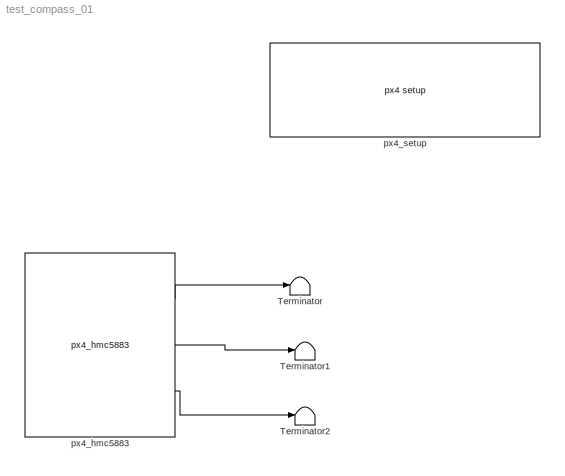
MODEL test_compass_01
KIND model
CONFIG InitFcn = px4_ap1_mdl_callback('check_model');
BLOCK [Terminator] Terminator
  SID = 1
BLOCK [Terminator] Terminator1
  SID = 2
BLOCK [Terminator] Terminator2
  SID = 3
BLOCK [Reference] px4_hmc5883  REF=px4_ap1_hmc5883_lib/px4_hmc5883
  Description = Setup for PX4 native software
  Ports = [0, 3]
  SID = 4
  SourceBlock = px4_ap1_hmc5883_lib/px4_hmc5883
  SourceType = PX4_HMC5883
  magRange = +/- 2.5Ga
BLOCK [Reference] px4_setup  REF=px4_ap1_px4setup_lib/px4 setup
  Ports = []
  SID = 5
  SampleTimeValue = 0.01
  SourceBlock = px4_ap1_px4setup_lib/px4 setup
  SourceType = PX4_Target_Setup
  cbBuild = on
  cbPort = COM3
  cbUpload = off
  cpuLoad = off
  debugmode = off
LINE px4_hmc5883:1 -> Terminator:1
LINE px4_hmc5883:2 -> Terminator1:1
LINE px4_hmc5883:3 -> Terminator2:1
